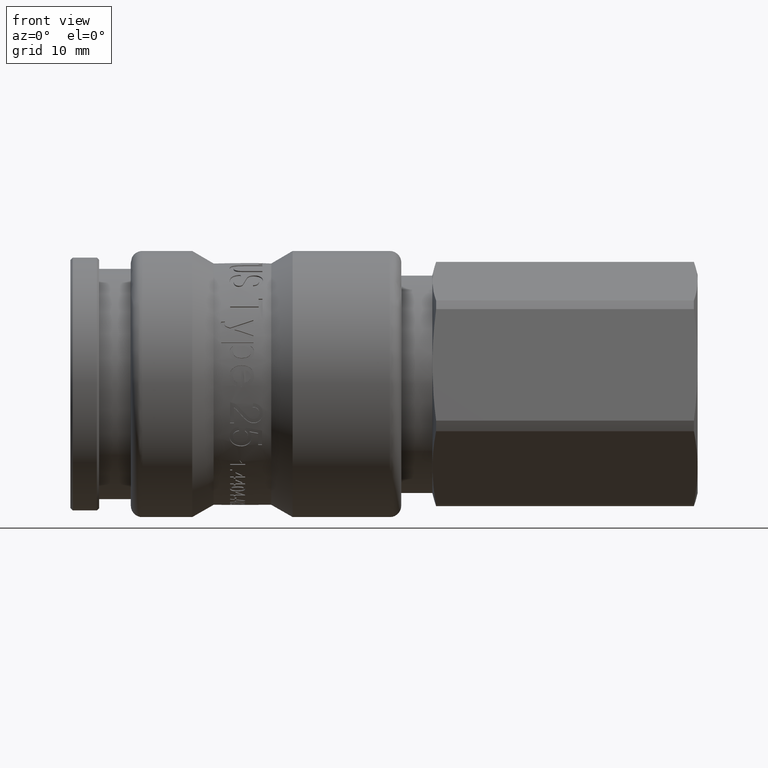
[diagram: clean part render]
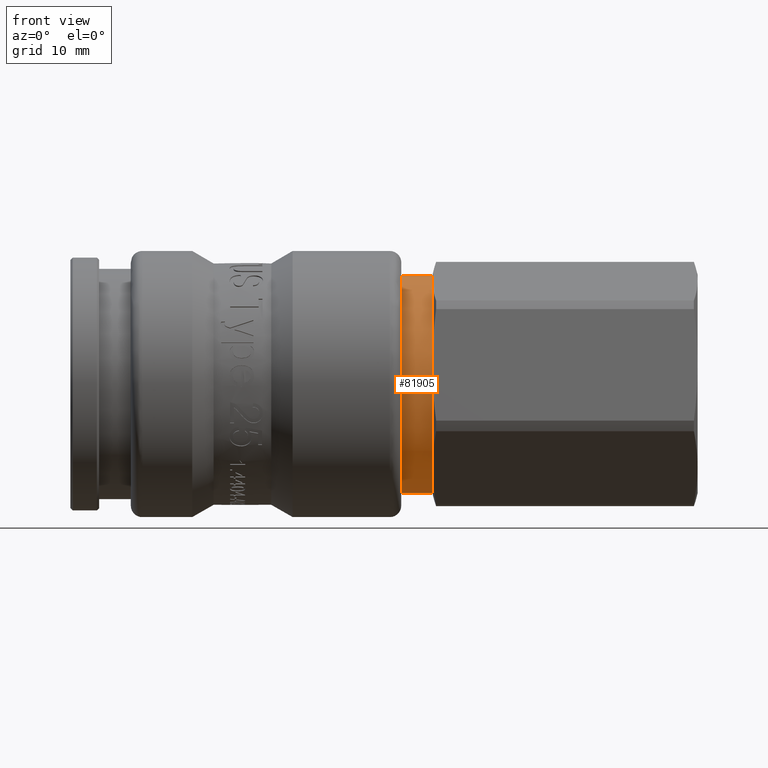
[diagram: same view with one face highlighted and labeled with its STEP entity id]
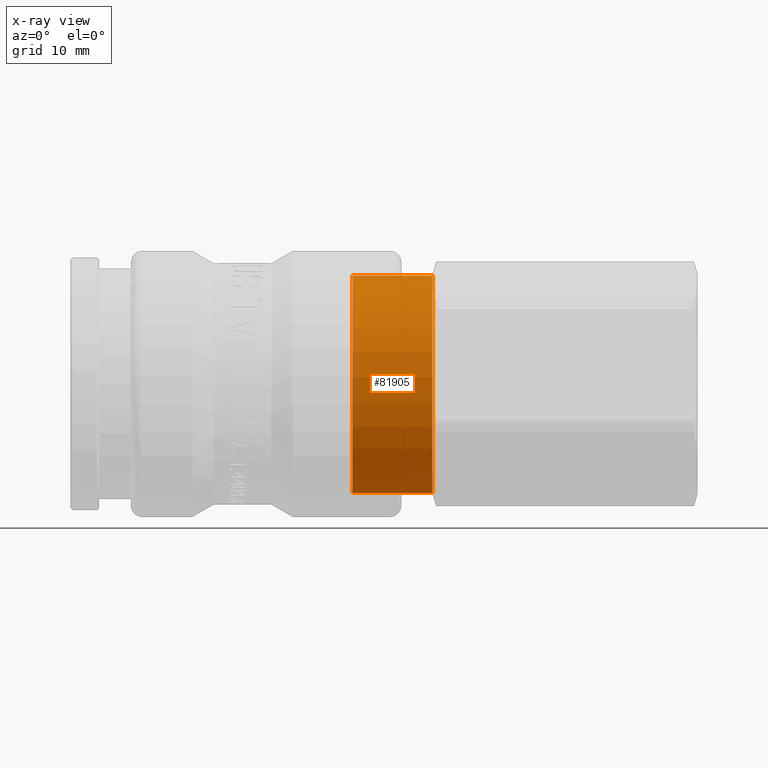
[diagram: x-ray of the same camera — body ghosted, the highlighted face saturated]
A machine part, front view. The second image highlights one B-rep face of the part: STEP entity #81905.
The next image is the same camera in x-ray: the body ghosted, the highlighted face saturated — about 0% of this face is hidden behind the body in this view.
In plain terms, the highlighted cylindrical surface (bore or boss wall) has radius 9.475 mm, axis along (-1, 0, -0).
Its self-contained STEP definition (entity closure, byte-faithful):
#81878=CARTESIAN_POINT('',(27.974999999999994,5.679936E-016,-1.307783E-030));
#81879=DIRECTION('',(-1.0,2.141352E-017,-4.930381E-032));
#81880=DIRECTION('',(2.108363E-017,0.984594253756042,-0.174854669570428));
#81881=AXIS2_PLACEMENT_3D('',#81878,#81879,#81880);
#81882=CYLINDRICAL_SURFACE('',#81881,9.475000000000000);
#81883=CARTESIAN_POINT('',(24.499999999999993,9.329030554338496,-1.656747994179802));
#81884=VERTEX_POINT('',#81883);
#81885=CARTESIAN_POINT('',(24.499999999999993,6.424056E-016,-1.479114E-030));
#81886=DIRECTION('',(-1.0,2.075882E-017,-3.686571E-018));
#81887=DIRECTION('',(2.108363E-017,0.984594253756042,-0.174854669570428));
#81888=AXIS2_PLACEMENT_3D('',#81885,#81886,#81887);
#81889=CIRCLE('',#81888,9.475000000000000);
#81890=EDGE_CURVE('',#81884,#81884,#81889,.T.);
#81891=ORIENTED_EDGE('',*,*,#81890,.F.);
#81892=EDGE_LOOP('',(#81891));
#81893=FACE_OUTER_BOUND('',#81892,.T.);
#81894=CARTESIAN_POINT('',(31.449999999999996,9.329030554338495,-1.656747994179802));
#81895=VERTEX_POINT('',#81894);
#81896=CARTESIAN_POINT('',(31.449999999999996,4.935817E-016,-1.136453E-030));
#81897=DIRECTION('',(-1.0,2.075882E-017,-3.686571E-018));
#81898=DIRECTION('',(2.108363E-017,0.984594253756042,-0.174854669570428));
#81899=AXIS2_PLACEMENT_3D('',#81896,#81897,#81898);
#81900=CIRCLE('',#81899,9.475000000000000);
#81901=EDGE_CURVE('',#81895,#81895,#81900,.T.);
#81902=ORIENTED_EDGE('',*,*,#81901,.T.);
#81903=EDGE_LOOP('',(#81902));
#81904=FACE_BOUND('',#81903,.T.);
#81905=ADVANCED_FACE('',(#81893,#81904),#81882,.T.);